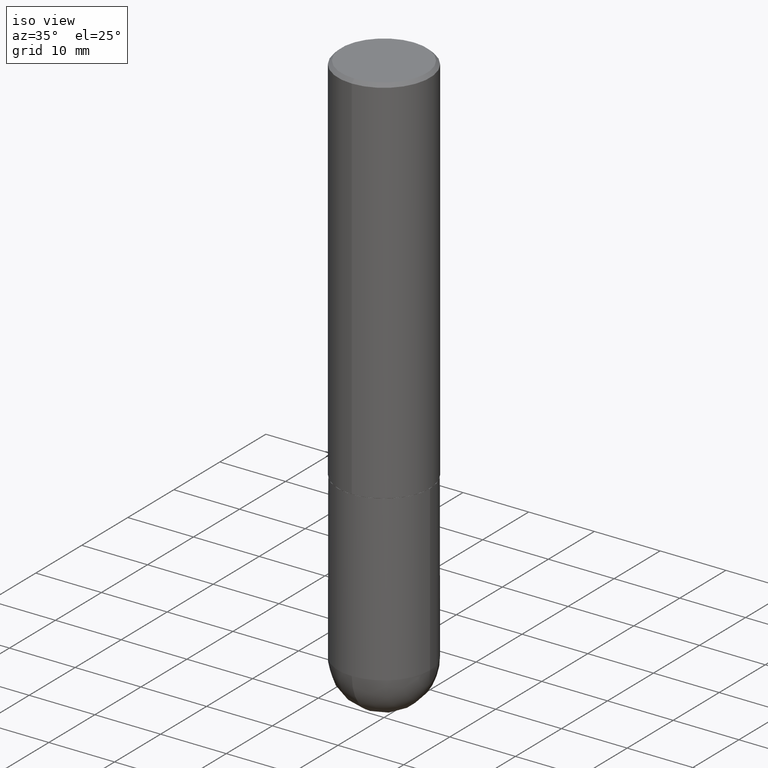
[diagram: clean part render]
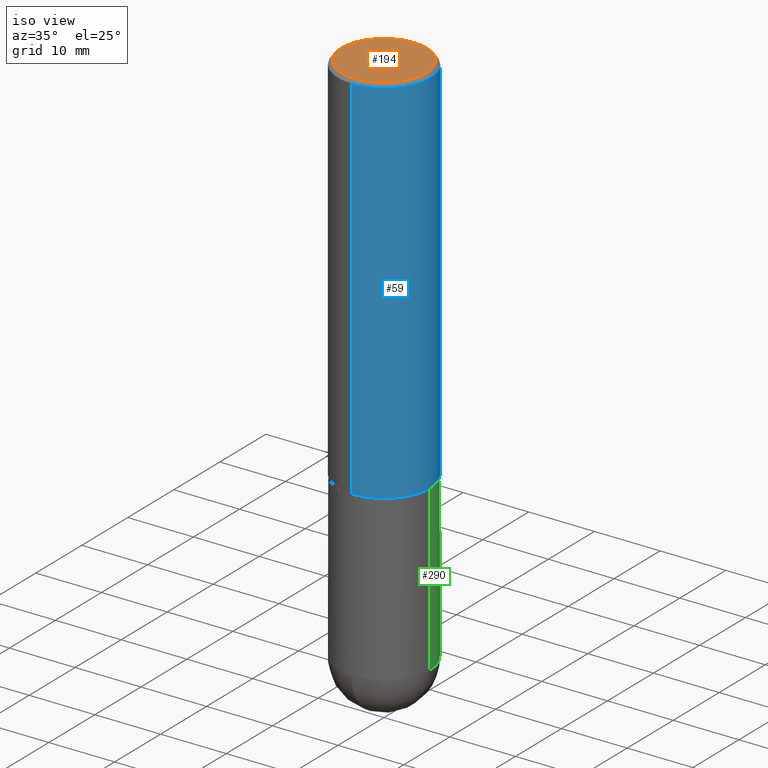
[diagram: same view with three faces highlighted in distinct colors, each labeled with its STEP entity id]
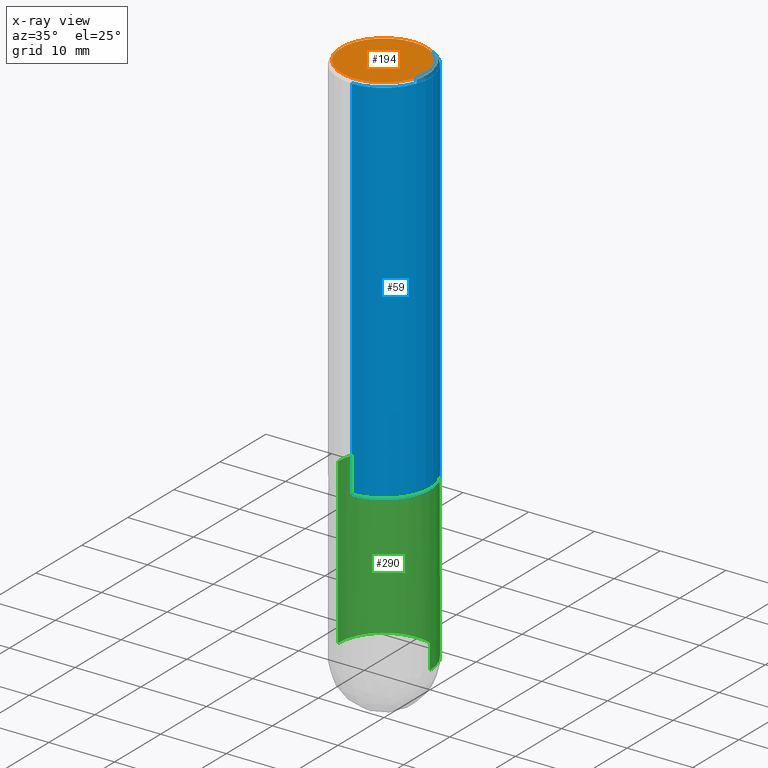
[diagram: x-ray of the same camera — body ghosted, the three highlighted faces saturated]
A machine part, iso view with three faces highlighted in distinct colors.
The next image is the same camera in x-ray (body ghosted, the three faces saturated) — at least one of them is partly hidden behind the body in this view.
Their STEP definitions:

[orange] entity #194 — the highlighted planar face has unit normal (0, -0, -1).
#20 = CIRCLE ( 'NONE', #364, 0.2555999999999998828 ) ;
#41 = VERTEX_POINT ( 'NONE', #288 ) ;
#58 = CARTESIAN_POINT ( 'NONE',  ( -1.822148268208117987E-15, -0.2555999999999998828, 9.772773212420895646E-16 ) ) ;
#64 = PLANE ( 'NONE',  #271 ) ;
#67 = CARTESIAN_POINT ( 'NONE',  ( -2.081998319088594359E-45, 2.970827639814557761E-31, 8.511247041789512322E-17 ) ) ;
#96 = DIRECTION ( 'NONE',  ( 2.446173056505300105E-29, -3.490472812301231884E-15, -1.000000000000000000 ) ) ;
#101 = VERTEX_POINT ( 'NONE', #58 ) ;
#104 = ORIENTED_EDGE ( 'NONE', *, *, #348, .T. ) ;
#130 = FACE_OUTER_BOUND ( 'NONE', #304, .T. ) ;
#159 = DIRECTION ( 'NONE',  ( -2.446173056505300385E-29, 3.490472812301231884E-15, 1.000000000000000000 ) ) ;
#162 = CARTESIAN_POINT ( 'NONE',  ( -2.081998319088594359E-45, 2.970827639814557761E-31, 8.511247041789512322E-17 ) ) ;
#186 = DIRECTION ( 'NONE',  ( 6.982962677686265922E-15, 1.000000000000000000, -3.490472812301231884E-15 ) ) ;
#189 = DIRECTION ( 'NONE',  ( -2.446173056505300385E-29, 3.490472812301231884E-15, 1.000000000000000000 ) ) ;
#194 = ADVANCED_FACE ( 'NONE', ( #130 ), #64, .F. ) ;
#228 = ORIENTED_EDGE ( 'NONE', *, *, #402, .T. ) ;
#236 = AXIS2_PLACEMENT_3D ( 'NONE', #67, #189, #294 ) ;
#260 = CARTESIAN_POINT ( 'NONE',  ( 1.784845260416608752E-15, 0.2555999999999998828, -8.496086156152468860E-16 ) ) ;
#271 = AXIS2_PLACEMENT_3D ( 'NONE', #260, #96, #186 ) ;
#288 = CARTESIAN_POINT ( 'NONE',  ( 1.854674887193472050E-15, 0.2555999999999998828, -8.070523804062993922E-16 ) ) ;
#294 = DIRECTION ( 'NONE',  ( -6.982962677686265922E-15, -1.000000000000000000, 3.490472812301231490E-15 ) ) ;
#301 = CIRCLE ( 'NONE', #236, 0.2555999999999998828 ) ;
#304 = EDGE_LOOP ( 'NONE', ( #104, #228 ) ) ;
#348 = EDGE_CURVE ( 'NONE', #41, #101, #20, .T. ) ;
#364 = AXIS2_PLACEMENT_3D ( 'NONE', #162, #159, #394 ) ;
#394 = DIRECTION ( 'NONE',  ( -6.982962677686265922E-15, -1.000000000000000000, 3.490472812301231490E-15 ) ) ;
#402 = EDGE_CURVE ( 'NONE', #101, #41, #301, .T. ) ;

[blue] entity #59 — the highlighted cylindrical surface (partial cylindrical patch) has radius 7.0002 mm, axis along (-0, 0, 1).
#2 = DIRECTION ( 'NONE',  ( -2.446173056505300385E-29, 3.490472812301231884E-15, 1.000000000000000000 ) ) ;
#3 = EDGE_CURVE ( 'NONE', #323, #331, #314, .T. ) ;
#9 = DIRECTION ( 'NONE',  ( -2.446173056505300385E-29, 3.490472812301231884E-15, 1.000000000000000000 ) ) ;
#22 = EDGE_CURVE ( 'NONE', #155, #323, #158, .T. ) ;
#24 = CARTESIAN_POINT ( 'NONE',  ( 1.958255779754864988E-15, 0.2755999999999924621, -2.243100000000000538 ) ) ;
#28 = CARTESIAN_POINT ( 'NONE',  ( 1.958255779754836589E-15, 0.2756000000000001227, -9.619743070702200430E-16 ) ) ;
#31 = CARTESIAN_POINT ( 'NONE',  ( 5.487010783047037445E-29, -7.829479565272891887E-15, -2.243099999999999206 ) ) ;
#34 = ORIENTED_EDGE ( 'NONE', *, *, #45, .T. ) ;
#35 = CIRCLE ( 'NONE', #337, 0.2756000000000002892 ) ;
#38 = DIRECTION ( 'NONE',  ( -2.446173056505300385E-29, 3.490472812301231884E-15, 1.000000000000000000 ) ) ;
#45 = EDGE_CURVE ( 'NONE', #200, #331, #148, .T. ) ;
#47 = VECTOR ( 'NONE', #369, 39.37007874015748143 ) ;
#59 = ADVANCED_FACE ( 'NONE', ( #173 ), #258, .T. ) ;
#63 = EDGE_LOOP ( 'NONE', ( #223, #34, #268, #69 ) ) ;
#69 = ORIENTED_EDGE ( 'NONE', *, *, #22, .F. ) ;
#89 = VECTOR ( 'NONE', #9, 39.37007874015748143 ) ;
#92 = DIRECTION ( 'NONE',  ( -2.446173056505300385E-29, 3.490472812301231884E-15, 1.000000000000000000 ) ) ;
#98 = CARTESIAN_POINT ( 'NONE',  ( -1.890753248185833319E-15, -0.2756000000000000671, -0.01999999999999910530 ) ) ;
#114 = CARTESIAN_POINT ( 'NONE',  ( 1.924504513970335348E-15, 0.2755999999999999006, -0.02000000000000102390 ) ) ;
#123 = AXIS2_PLACEMENT_3D ( 'NONE', #343, #92, #287 ) ;
#131 = CARTESIAN_POINT ( 'NONE',  ( -1.924504513970335743E-15, -0.2756000000000001227, 9.619743070702200430E-16 ) ) ;
#148 = LINE ( 'NONE', #28, #47 ) ;
#153 = DIRECTION ( 'NONE',  ( -6.982962677686265922E-15, -1.000000000000000000, 3.484816075009406388E-15 ) ) ;
#155 = VERTEX_POINT ( 'NONE', #182 ) ;
#158 = LINE ( 'NONE', #131, #89 ) ;
#161 = EDGE_CURVE ( 'NONE', #155, #200, #35, .T. ) ;
#173 = FACE_OUTER_BOUND ( 'NONE', #63, .T. ) ;
#182 = CARTESIAN_POINT ( 'NONE',  ( -1.924504513970282100E-15, -0.2756000000000080608, -2.243099999999998317 ) ) ;
#200 = VERTEX_POINT ( 'NONE', #24 ) ;
#212 = DIRECTION ( 'NONE',  ( -6.982962677686265922E-15, -1.000000000000000000, 3.964946289788476952E-15 ) ) ;
#223 = ORIENTED_EDGE ( 'NONE', *, *, #161, .T. ) ;
#258 = CYLINDRICAL_SURFACE ( 'NONE', #123, 0.2756000000000001227 ) ;
#268 = ORIENTED_EDGE ( 'NONE', *, *, #3, .F. ) ;
#287 = DIRECTION ( 'NONE',  ( -6.982962677686265922E-15, -1.000000000000000000, 3.490472812301232279E-15 ) ) ;
#314 = CIRCLE ( 'NONE', #409, 0.2756000000000000116 ) ;
#318 = CARTESIAN_POINT ( 'NONE',  ( 4.892346113010616569E-31, -6.980945624602486202E-17, -0.02000000000000006287 ) ) ;
#323 = VERTEX_POINT ( 'NONE', #98 ) ;
#331 = VERTEX_POINT ( 'NONE', #114 ) ;
#337 = AXIS2_PLACEMENT_3D ( 'NONE', #31, #2, #212 ) ;
#343 = CARTESIAN_POINT ( 'NONE',  ( 0.000000000000000000, 0.000000000000000000, 0.000000000000000000 ) ) ;
#369 = DIRECTION ( 'NONE',  ( -2.446173056505300385E-29, 3.490472812301231884E-15, 1.000000000000000000 ) ) ;
#409 = AXIS2_PLACEMENT_3D ( 'NONE', #318, #38, #153 ) ;

[green] entity #290 — the highlighted cylindrical surface (partial cylindrical patch) has radius 7.0002 mm, axis along (-0, 0, 1).
#27 = LINE ( 'NONE', #93, #403 ) ;
#29 = DIRECTION ( 'NONE',  ( -2.445468806185136597E-29, 3.491481338843145583E-15, 1.000000000000000000 ) ) ;
#37 = EDGE_CURVE ( 'NONE', #257, #88, #27, .T. ) ;
#49 = ORIENTED_EDGE ( 'NONE', *, *, #86, .T. ) ;
#52 = VECTOR ( 'NONE', #374, 39.37007874015748143 ) ;
#53 = AXIS2_PLACEMENT_3D ( 'NONE', #174, #310, #177 ) ;
#55 = CYLINDRICAL_SURFACE ( 'NONE', #53, 0.2756000000000000671 ) ;
#61 = LINE ( 'NONE', #251, #52 ) ;
#66 = VERTEX_POINT ( 'NONE', #317 ) ;
#86 = EDGE_CURVE ( 'NONE', #353, #378, #356, .T. ) ;
#88 = VERTEX_POINT ( 'NONE', #382 ) ;
#93 = CARTESIAN_POINT ( 'NONE',  ( 0.2756000000000000671, -1.924504513970335743E-15, 1.343874319409360268E-29 ) ) ;
#129 = CARTESIAN_POINT ( 'NONE',  ( 7.894706947007475996E-29, -1.127154920618732565E-14, -3.228299999999999503 ) ) ;
#142 = EDGE_LOOP ( 'NONE', ( #49, #238, #375, #330, #274 ) ) ;
#152 = EDGE_CURVE ( 'NONE', #378, #66, #61, .T. ) ;
#156 = AXIS2_PLACEMENT_3D ( 'NONE', #350, #406, #340 ) ;
#174 = CARTESIAN_POINT ( 'NONE',  ( 0.000000000000000000, 0.000000000000000000, 0.000000000000000000 ) ) ;
#177 = DIRECTION ( 'NONE',  ( 1.000000000000000000, -6.982962677686267499E-15, 4.876176775795935793E-29 ) ) ;
#190 = EDGE_CURVE ( 'NONE', #257, #353, #373, .T. ) ;
#209 = DIRECTION ( 'NONE',  ( 1.000000000000000000, -6.982962677686264344E-15, 0.000000000000000000 ) ) ;
#220 = FACE_OUTER_BOUND ( 'NONE', #142, .T. ) ;
#234 = CARTESIAN_POINT ( 'NONE',  ( -0.2756000000000000671, -7.595135459587778194E-15, -3.228299999999999503 ) ) ;
#238 = ORIENTED_EDGE ( 'NONE', *, *, #152, .T. ) ;
#250 = DIRECTION ( 'NONE',  ( -2.445468806185136877E-29, 3.491481338843145188E-15, 1.000000000000000000 ) ) ;
#251 = CARTESIAN_POINT ( 'NONE',  ( -0.2756000000000000671, 1.958255779754836589E-15, -1.355658510874252287E-29 ) ) ;
#257 = VERTEX_POINT ( 'NONE', #275 ) ;
#267 = AXIS2_PLACEMENT_3D ( 'NONE', #129, #29, #209 ) ;
#274 = ORIENTED_EDGE ( 'NONE', *, *, #190, .T. ) ;
#275 = CARTESIAN_POINT ( 'NONE',  ( 0.2756000000000000671, -1.147789575331294974E-14, -3.228299999999999503 ) ) ;
#290 = ADVANCED_FACE ( 'NONE', ( #220 ), #55, .T. ) ;
#291 = CIRCLE ( 'NONE', #404, 0.2756000000000000116 ) ;
#299 = DIRECTION ( 'NONE',  ( 1.000000000000000000, -6.982962677686265922E-15, 0.000000000000000000 ) ) ;
#310 = DIRECTION ( 'NONE',  ( -2.445468806185136597E-29, 3.491481338843145583E-15, 1.000000000000000000 ) ) ;
#317 = CARTESIAN_POINT ( 'NONE',  ( -0.2756000000000000116, -7.595135459587776616E-15, -2.244099999999999540 ) ) ;
#328 = DIRECTION ( 'NONE',  ( -2.445468806185136597E-29, 3.491481338843145583E-15, 1.000000000000000000 ) ) ;
#330 = ORIENTED_EDGE ( 'NONE', *, *, #37, .F. ) ;
#340 = DIRECTION ( 'NONE',  ( 1.000000000000000000, -6.982962677686264344E-15, 0.000000000000000000 ) ) ;
#350 = CARTESIAN_POINT ( 'NONE',  ( 7.894706947007475996E-29, -1.127154920618732565E-14, -3.228299999999999503 ) ) ;
#353 = VERTEX_POINT ( 'NONE', #395 ) ;
#354 = CARTESIAN_POINT ( 'NONE',  ( 5.487876547960063631E-29, -7.835233272497900762E-15, -2.244099999999999540 ) ) ;
#356 = CIRCLE ( 'NONE', #267, 0.2756000000000000671 ) ;
#373 = CIRCLE ( 'NONE', #156, 0.2756000000000000671 ) ;
#374 = DIRECTION ( 'NONE',  ( -2.445468806185136877E-29, 3.491481338843145188E-15, 1.000000000000000000 ) ) ;
#375 = ORIENTED_EDGE ( 'NONE', *, *, #380, .F. ) ;
#378 = VERTEX_POINT ( 'NONE', #234 ) ;
#380 = EDGE_CURVE ( 'NONE', #88, #66, #291, .T. ) ;
#382 = CARTESIAN_POINT ( 'NONE',  ( 0.2756000000000000116, -9.759737786468235716E-15, -2.244099999999999540 ) ) ;
#395 = CARTESIAN_POINT ( 'NONE',  ( 1.924504513970413840E-15, 0.2755999999999887429, -3.228300000000000836 ) ) ;
#403 = VECTOR ( 'NONE', #250, 39.37007874015748143 ) ;
#404 = AXIS2_PLACEMENT_3D ( 'NONE', #354, #328, #299 ) ;
#406 = DIRECTION ( 'NONE',  ( -2.445468806185136597E-29, 3.491481338843145583E-15, 1.000000000000000000 ) ) ;